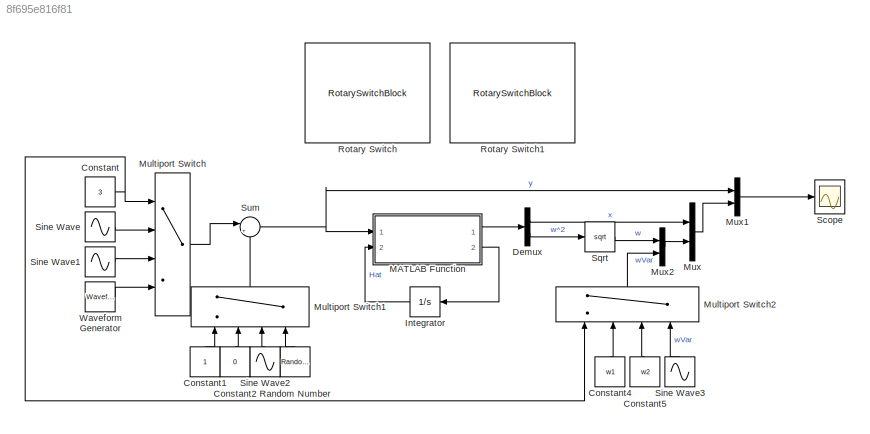
MODEL slx_8f695e816f81
KIND model
CONFIG AbsTol = auto
CONFIG EnableMultiTasking = off
CONFIG FixedStep = auto
CONFIG InitFcn = varSym
CONFIG MaxStep = auto
CONFIG MinStep = auto
CONFIG RelTol = 1e-3
CONFIG SampleTimeConstraint = Unconstrained
CONFIG Solver = VariableStepAuto
CONFIG SolverName = VariableStepAuto
CONFIG StartTime = 0.0
CONFIG StopTime = 100
BLOCK [Constant] Constant
  Value = 3
BLOCK [Constant] Constant1
  NameLocation = right
BLOCK [Constant] Constant2
  NameLocation = right
  Value = 0
BLOCK [Constant] Constant4
  NameLocation = right
  Value = w1
BLOCK [Constant] Constant5
  NameLocation = right
  Value = w2
BLOCK [Demux] Demux
  Outputs = 2
  Ports = [1, 2]
BLOCK [Integrator] Integrator
  InitialCondition = est0
  NameLocation = top
  Ports = [1, 1]
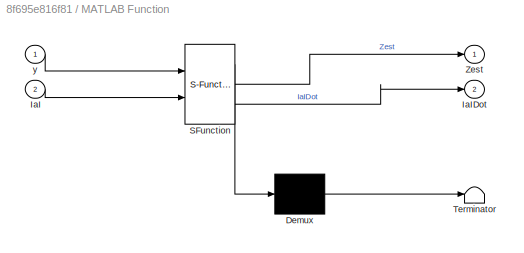
BLOCK [SubSystem] MATLAB Function
  ErrorFcn = Stateflow.Translate.translate
  PermitHierarchicalResolution = ExplicitOnly
  Ports = [2, 2]
  RequestExecContextInheritance = off
  SFBlockType = MATLAB Function
  TreatAsAtomicUnit = on
BLOCK [Demux] MATLAB Function/ Demux 
  Outputs = 1
  Ports = [1, 1]
BLOCK [S-Function] MATLAB Function/ SFunction 
  EnableBusSupport = on
  FunctionName = sf_sfun
  PortCounts = [2 3]
  Ports = [2, 3]
  SFcnIsStateOwnerBlock = off
  SFunctionDeploymentMode = off
  Tag = Stateflow S-Function 2
BLOCK [Terminator] MATLAB Function/ Terminator 
BLOCK [Inport] MATLAB Function/IaI
  Port = 2
BLOCK [Outport] MATLAB Function/IaIDot
  Port = 2
BLOCK [Outport] MATLAB Function/Zest
BLOCK [Inport] MATLAB Function/y
BLOCK [MultiPortSwitch] Multiport Switch
  InputSameDT = off
  Ports = [4, 1]
  SaturateOnIntegerOverflow = off
BLOCK [MultiPortSwitch] Multiport Switch1
  InputSameDT = off
  NameLocation = right
  Ports = [4, 1]
  SaturateOnIntegerOverflow = off
BLOCK [MultiPortSwitch] Multiport Switch2
  InputSameDT = off
  NameLocation = right
  Ports = [4, 1]
  SaturateOnIntegerOverflow = off
BLOCK [Mux] Mux
  DisplayOption = bar
  Inputs = 2
  Ports = [2, 1]
BLOCK [Mux] Mux1
  DisplayOption = bar
  Inputs = 2
  Ports = [2, 1]
BLOCK [Mux] Mux2
  DisplayOption = bar
  Inputs = 2
  Ports = [2, 1]
BLOCK [RandomNumber] Random Number
  Mean = md2
  NameLocation = right
  SampleTime = 0.1
  Variance = vd2
BLOCK [RotarySwitchBlock] Rotary Switch
  LabelPosition = Hide
BLOCK [RotarySwitchBlock] Rotary Switch1
  LabelPosition = Hide
BLOCK [Scope] Scope
  Floating = off
  NumInputPorts = 1
  Ports = [1]
  ScopeSpecificationString = Simulink.scopes.TimeScopeBlockCfg('CurrentConfiguration', extmgr.ConfigurationSet(extmgr.Configuration('Core','General UI',true,'DisplayFullSourceName',true),extmgr.Configuration('Core','Source UI',true),extmgr.Configuration('Sources','WiredSimulink',true),extmgr.Configuration('Visuals','Time Domain',true,'SerializedDisplays',{struct('MinYLimReal','-2.33768','MaxYLimReal','2.3461','YLabelReal','',...<+1569ch>
BLOCK [Sin] Sine Wave
  Amplitude = a1
  Frequency = w1
  Ports = [0, 1]
  SampleTime = 0
BLOCK [Sin] Sine Wave1
  Amplitude = a2
  Frequency = w2
  Ports = [0, 1]
  SampleTime = 0
BLOCK [Sin] Sine Wave2
  Amplitude = ad1
  Frequency = wd1
  NameLocation = right
  Ports = [0, 1]
  SampleTime = 0
BLOCK [Sin] Sine Wave3
  Amplitude = wMax
  Bias = wMax+0.01
  Frequency = wChange
  NameLocation = right
  Ports = [0, 1]
  SampleTime = 0
BLOCK [Sqrt] Sqrt
BLOCK [Sum] Sum
  Inputs = |++
  Ports = [2, 1]
BLOCK [Reference] Waveform Generator  REF=simulink/Sources/Waveform
Generator
  Ports = [0, 1]
  SourceBlock = simulink/Sources/Waveform\nGenerator
  SourceProductBaseCode = SL
  SourceType = WaveformGenerator
LINE Constant1:1 -> Multiport Switch1:1
LINE Constant2:1 -> Multiport Switch1:2
LINE Constant4:1 -> Multiport Switch2:2
LINE Constant5:1 -> Multiport Switch2:3
NET Constant:1 -> Multiport Switch2:1, Multiport Switch:1
LINE Demux:1 -> Mux:1
LINE Demux:2 -> Sqrt:1
LINE Integrator:1 -> MATLAB Function:2
LINE MATLAB Function:1 -> Demux:1
LINE MATLAB Function:2 -> Integrator:1
LINE Multiport Switch1:1 -> Sum:2
LINE Multiport Switch2:1 -> Mux2:2
LINE Multiport Switch:1 -> Sum:1
LINE Mux1:1 -> Scope:1
LINE Mux2:1 -> Mux:2
LINE Mux:1 -> Mux1:2
LINE Random Number:1 -> Multiport Switch1:4
LINE Sine Wave1:1 -> Multiport Switch:3
LINE Sine Wave2:1 -> Multiport Switch1:3
LINE Sine Wave3:1 -> Multiport Switch2:4
LINE Sine Wave:1 -> Multiport Switch:2
LINE Sqrt:1 -> Mux2:1
NET Sum:1 -> MATLAB Function:1, Mux1:1
LINE Waveform Generator:1 -> Multiport Switch:4
note: NET lines group one-source signal fan-out (src -> all destinations, sorted); 1:1 wires keep LINE
CHART MATLAB Function states=1 transitions=1
  STATE_LABEL 'eML_blk_kernel()'
  STATE_LABEL "SCRIPT:\nfunction [Zest, IaIDot] = IandI(y,IaI)\n%       |x2Hat   |           |x2HatDot   |\n% IaI = |        |  IaIDot = |           |\n%       |tethaHat|           |tethaHatDot|\n\n%        |x2Est   |\n% Zest = |        |\n%        |tethaEst|\n\ncoder.extrinsic('evalin', 'assignin')\nk1 = 0;                  \nk1 = evalin('base','k1');\n\n\nZest=zeros(2,1);\nZest(2) = y*IaI(1) + IaI(2);\nZest(1) = k1*y + IaI(1)*...<+310ch>"
CHART  states=0 transitions=0
